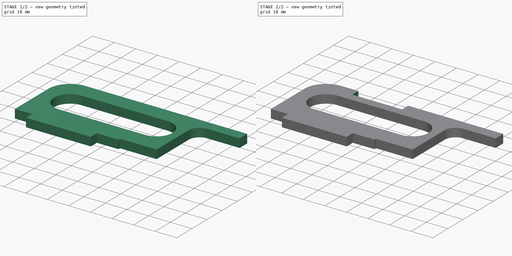
[diagram: build sequence overview — one tinted view per stage of 2, left to right]
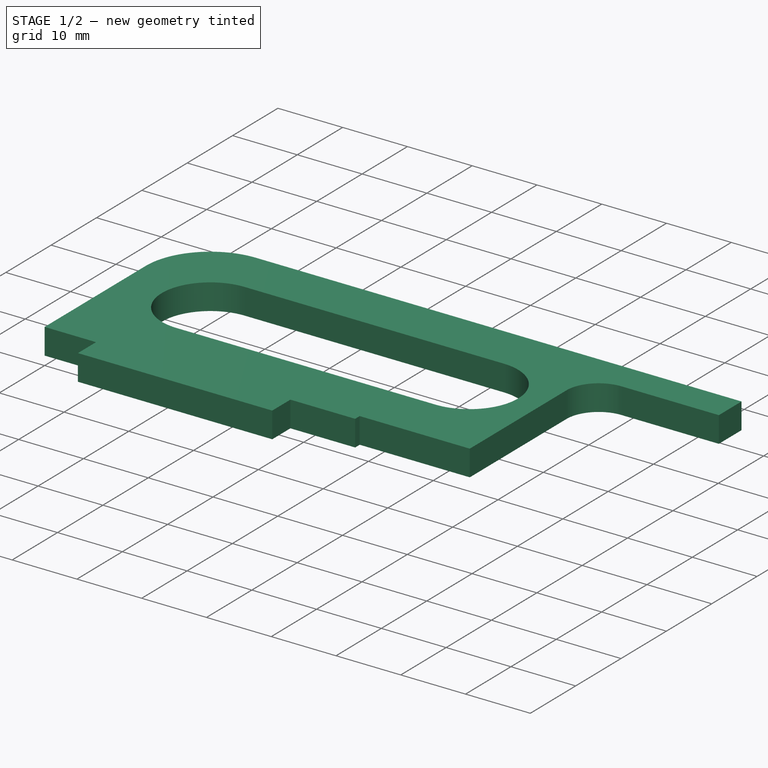
[diagram: stage 1 of 2 — iso view after this stage's code; geometry added in this stage tinted green]
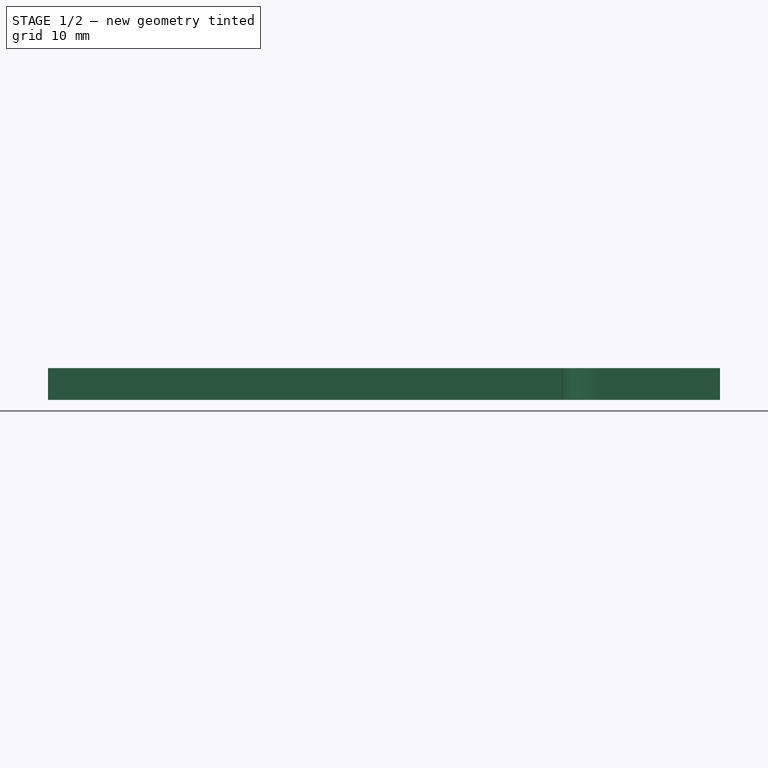
[diagram: stage 1 of 2 — front view after this stage's code; geometry added in this stage tinted green]
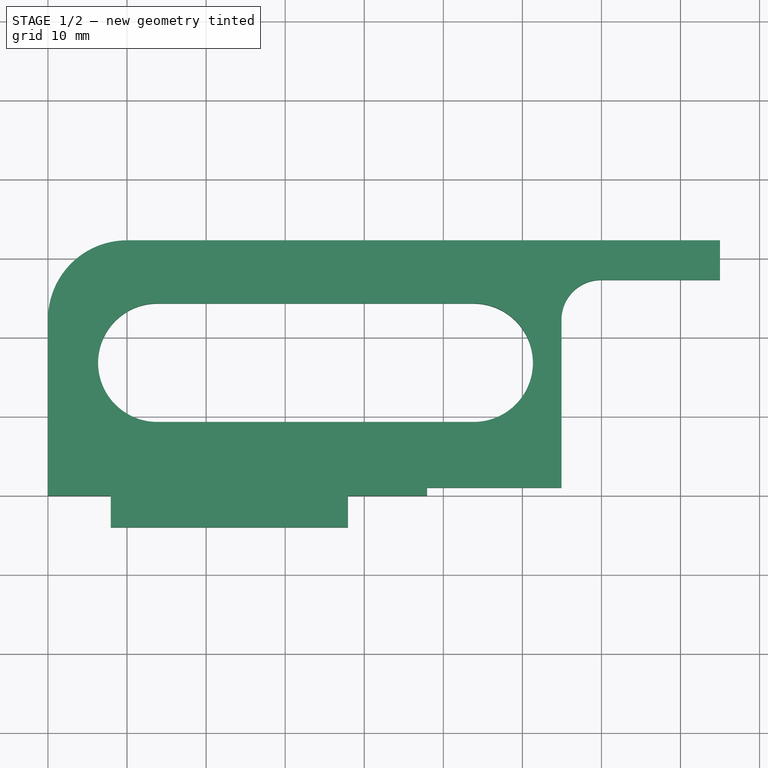
[diagram: stage 1 of 2 — top view after this stage's code; geometry added in this stage tinted green]
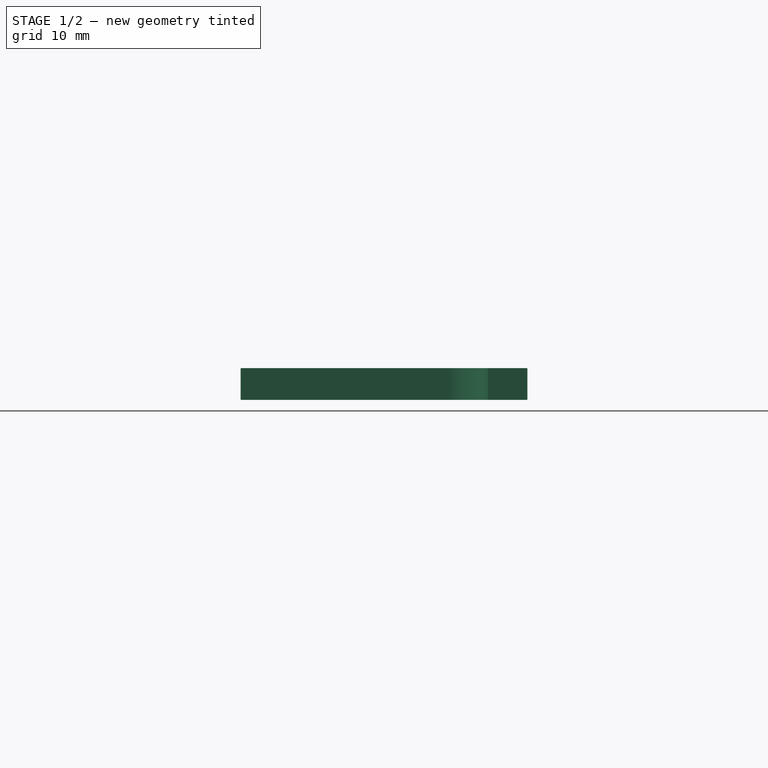
[diagram: stage 1 of 2 — right view after this stage's code; geometry added in this stage tinted green]
FCSTD DOCUMENT  (FreeCAD 0.21R33771 (Git))
Label: FRAME_STRUT_01
License: All rights reserved
LicenseURL: https://en.wikipedia.org/wiki/All_rights_reserved
objects: Sketcher::SketchObject×2, PartDesign::Pad×1, PartDesign::Pocket×1, PartDesign::Body×1
note: 7 computed .brp shape members not serialized (recipe doc carries the construction recipe); baked Part::Feature solids carry a one-line shape summary decoded from their .brp

FEATURE [Sketcher::SketchObject] Sketch002  label="STRUT_01"
  FullyConstrained = false
  MapMode = 5
  sketch-geometry (21):
    g0: LineSegment StartX=65 StartY=32.2816 StartZ=0 EndX=-10 EndY=32.2816 EndZ=0
    g1: LineSegment StartX=-20 StartY=22.2816 StartZ=0 EndX=-20 EndY=0 EndZ=0
    g2: LineSegment StartX=65 StartY=27.2816 StartZ=0 EndX=65 EndY=32.2816 EndZ=0
    g3: LineSegment StartX=49.9465 StartY=27.2816 StartZ=0 EndX=65 EndY=27.2816 EndZ=0
    g4: ArcOfCircle CenterX=-10 CenterY=22.2816 CenterZ=0 NormalX=0 NormalY=0 NormalZ=1 AngleXU=0 Radius=10 StartAngle=1.5708 EndAngle=3.14159
    g5: GeomPoint X=-20 Y=32.2816 Z=0
    g6: LineSegment StartX=27.9465 StartY=0 StartZ=0 EndX=27.9465 EndY=1 EndZ=0
    g7: LineSegment StartX=27.9465 StartY=1 StartZ=0 EndX=44.9465 EndY=1 EndZ=0
    g8: LineSegment StartX=44.9465 StartY=1 StartZ=0 EndX=44.9465 EndY=22.2816 EndZ=0
    g9: LineSegment StartX=44.9465 StartY=0 StartZ=0 EndX=44.9465 EndY=1 EndZ=0
    g10: LineSegment StartX=0 StartY=0 StartZ=0 EndX=0 EndY=5.71593 EndZ=0
    g11: LineSegment StartX=27.9465 StartY=0 StartZ=0 EndX=17.9465 EndY=0 EndZ=0
    g12: LineSegment StartX=17.9465 StartY=-4 StartZ=0 EndX=17.9465 EndY=0 EndZ=0
    g13: LineSegment StartX=17.9465 StartY=-4 StartZ=0 EndX=-12.0535 EndY=-4 EndZ=0
    g14: LineSegment StartX=-12.0535 StartY=-4 StartZ=0 EndX=-12.0535 EndY=0 EndZ=0
    g15: LineSegment StartX=-12.0535 StartY=0 StartZ=0 EndX=-20 EndY=0 EndZ=0
    g16: ArcOfCircle CenterX=-6.16461 CenterY=16.8073 CenterZ=0 NormalX=0 NormalY=0 NormalZ=1 AngleXU=0 Radius=7.5 StartAngle=1.5708 EndAngle=4.71239
    g17: ArcOfCircle CenterX=33.8354 CenterY=16.8073 CenterZ=0 NormalX=0 NormalY=0 NormalZ=1 AngleXU=0 Radius=7.5 StartAngle=4.71239 EndAngle=7.85398
    g18: LineSegment StartX=33.8354 StartY=24.3073 StartZ=0 EndX=-6.16461 EndY=24.3073 EndZ=0
    g19: LineSegment StartX=-6.16461 StartY=9.30731 StartZ=0 EndX=33.8354 EndY=9.30731 EndZ=0
    g20: ArcOfCircle CenterX=49.9465 CenterY=22.2816 CenterZ=0 NormalX=0 NormalY=0 NormalZ=1 AngleXU=0 Radius=5 StartAngle=1.5708 EndAngle=3.14159
  constraints (51):
    c: Horizontal(g0)
    c: Vertical(g1)
    c: Coincident(g2,g0)
    c: Vertical(g2)
    c: DistanceX(g5,g0) = 85
    c: DistanceX(g1,g-1) = 20
    c: DistanceY(g2,g2) = 5
    c: DistanceY(g12,g6) = 4
    c: PointOnObject(g5,g0)
    c: PointOnObject(g5,g1)
    c: Tangent(g0,g4) = -1.5708
    c: Tangent(g1,g4) = -1.5708
    c: Radius(g4) = 10
    c: Coincident(g7,g6)
    c: Horizontal(g7)
    c: Coincident(g8,g7)
    c: Vertical(g8)
    c: DistanceY(g6,g6) = 1
    c: PointOnObject(g6,g-1)
    c: PointOnObject(g9,g-1)
    c: Coincident(g9,g7)
    c: Vertical(g9)
    c: PointOnObject(g10,g-2)
    c: Coincident(g11,g6)
    c: PointOnObject(g11,g-1)
    c: Coincident(g12,g11)
    c: Vertical(g12)
    c: DistanceX(g7,g7) = 17
    c: Vertical(g6)
    c: Coincident(g13,g12)
    c: Horizontal(g13)
    c: Coincident(g14,g13)
    c: Vertical(g14)
    c: Coincident(g15,g14)
    c: Coincident(g15,g1)
    c: DistanceX(g13,g13) = 30
    c: DistanceX(g11,g11) = 10
    c: Coincident(g2,g3)
    c: Horizontal(g3)
    c: Tangent(g17,g18) = -1.5708
    c: Tangent(g18,g16) = -1.5708
    c: Equal(g16,g17)
    c: DistanceY(g17,g17) = 15
    c: DistanceX(g16,g17) = 40
    c: Coincident(g19,g16)
    c: Coincident(g19,g17)
    c: Horizontal(g19)
    c: Tangent(g19,g16)
    c: Tangent(g8,g20) = 1.5708
    c: Tangent(g3,g20) = 1.5708
    c: Radius(g20) = 5
FEATURE [PartDesign::Pad] Pad
  Direction = (0,0,1)
  Length = 4
  Length2 = 10
  Profile = -> Sketch002
  ReferenceAxis = -> Sketch002 [N_Axis]
  Type = 0
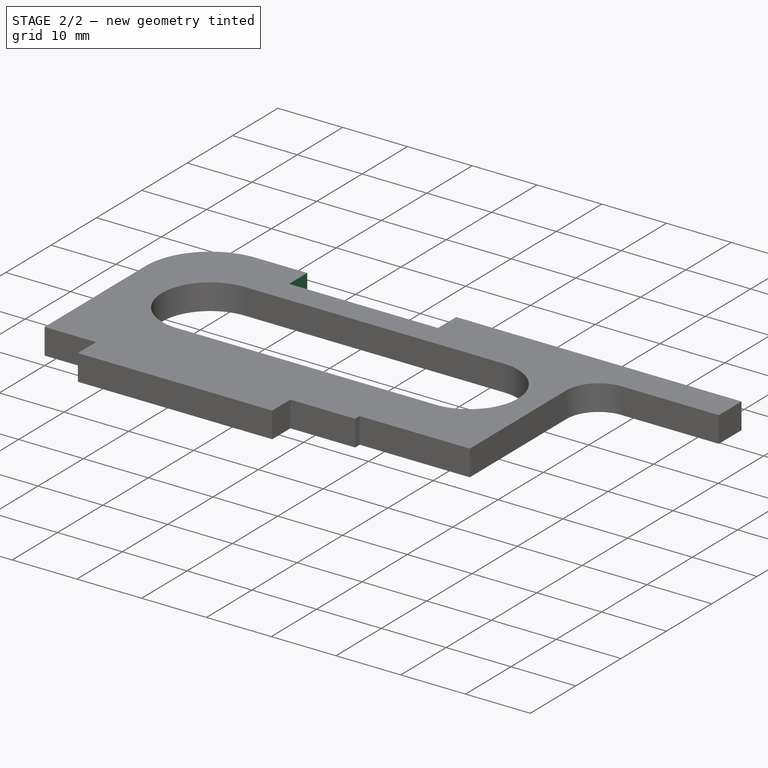
[diagram: stage 2 of 2 — iso view after this stage's code; geometry added in this stage tinted green]
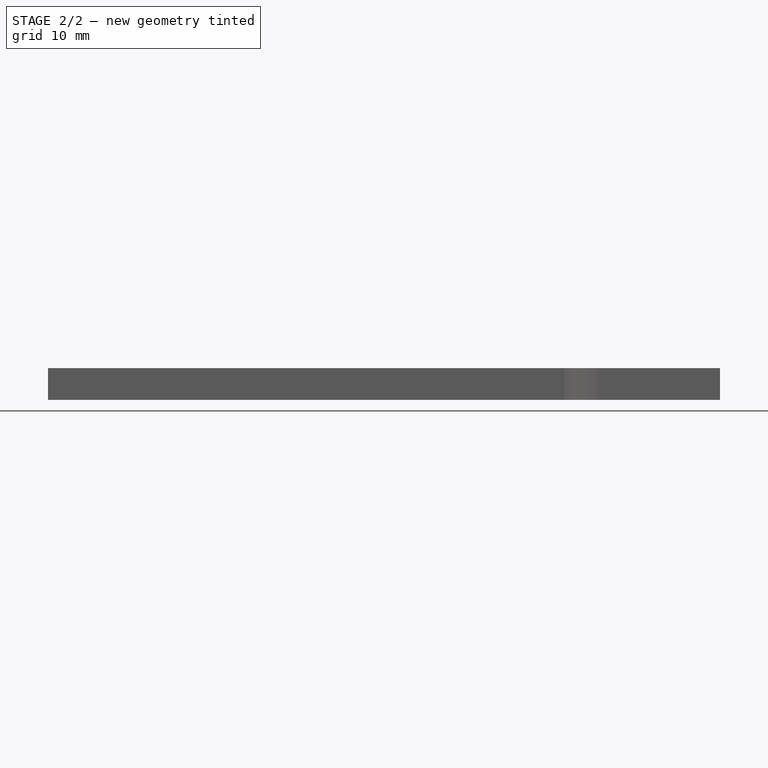
[diagram: stage 2 of 2 — front view after this stage's code; geometry added in this stage tinted green]
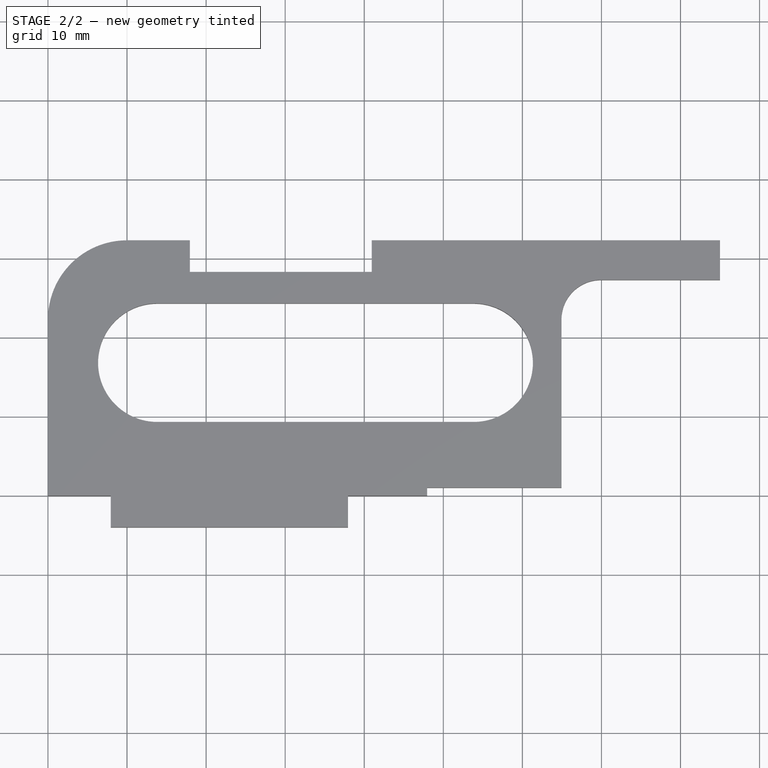
[diagram: stage 2 of 2 — top view after this stage's code; geometry added in this stage tinted green]
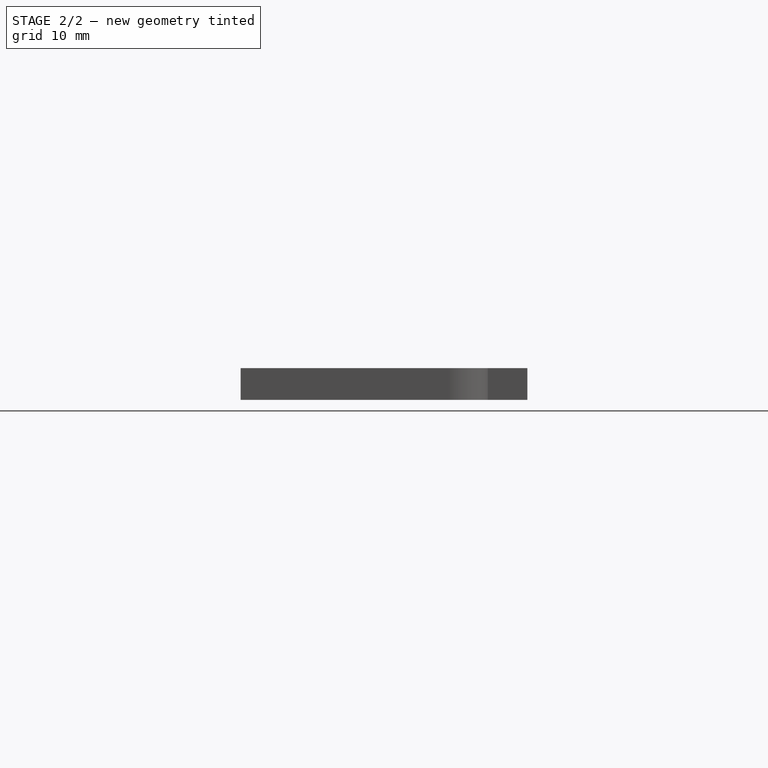
[diagram: stage 2 of 2 — right view after this stage's code; geometry added in this stage tinted green]
FEATURE [Sketcher::SketchObject] Sketch
  ExternalGeometry = -> [Pad]
  FullyConstrained = true
  MapMode = 5
  Placement = pos=(0,0,4) rot=(0,0,1;0rad)
  Support = -> [Pad]
  sketch-geometry (4):
    g0: LineSegment StartX=-2.05346 StartY=32.2816 StartZ=0 EndX=20.9465 EndY=32.2816 EndZ=0
    g1: LineSegment StartX=20.9465 StartY=32.2816 StartZ=0 EndX=20.9465 EndY=28.2816 EndZ=0
    g2: LineSegment StartX=20.9465 StartY=28.2816 StartZ=0 EndX=-2.05346 EndY=28.2816 EndZ=0
    g3: LineSegment StartX=-2.05346 StartY=28.2816 StartZ=0 EndX=-2.05346 EndY=32.2816 EndZ=0
  constraints (12):
    c: Coincident(g0,g1)
    c: Coincident(g1,g2)
    c: Coincident(g2,g3)
    c: Coincident(g3,g0)
    c: Horizontal(g0)
    c: Horizontal(g2)
    c: Vertical(g1)
    c: Vertical(g3)
    c: PointOnObject(g0,g-3)
    c: DistanceY(g1,g1) = 4
    c: DistanceX(g0,g0) = 23
    c: DistanceX(g-4,g0) = 10
FEATURE [PartDesign::Pocket] Pocket
  BaseFeature = -> Pad
  Direction = (0,0,-1)
  Length = 5
  Length2 = 5
  Profile = -> Sketch
  ReferenceAxis = -> Sketch [N_Axis]
  Type = 0
FEATURE [PartDesign::Body] Body
  Group = -> [Sketch002,Pad,Sketch,Pocket]
  Origin = -> Origin
  Tip = -> Pocket
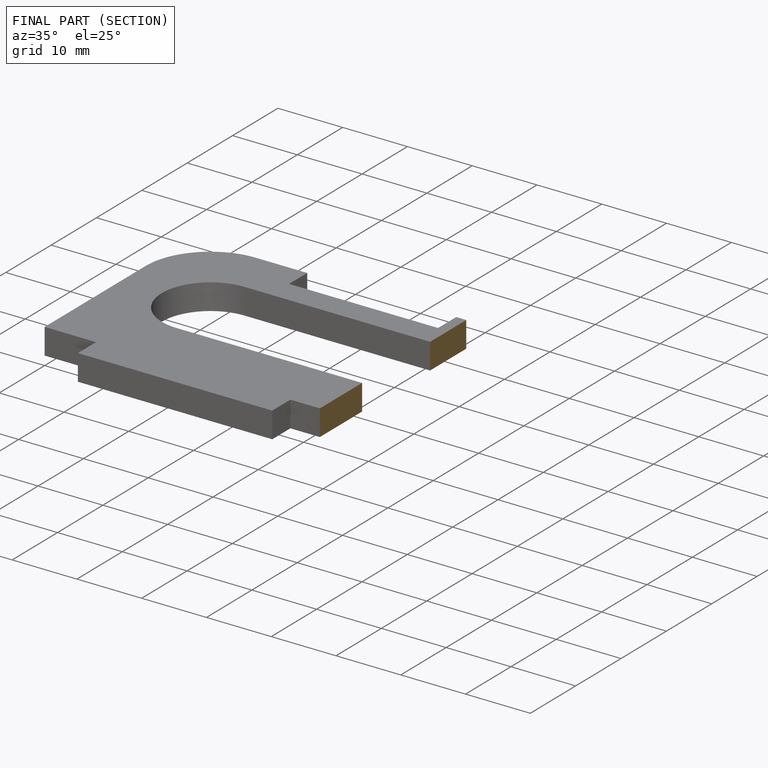
[diagram: finished part — half-section view (interior)]
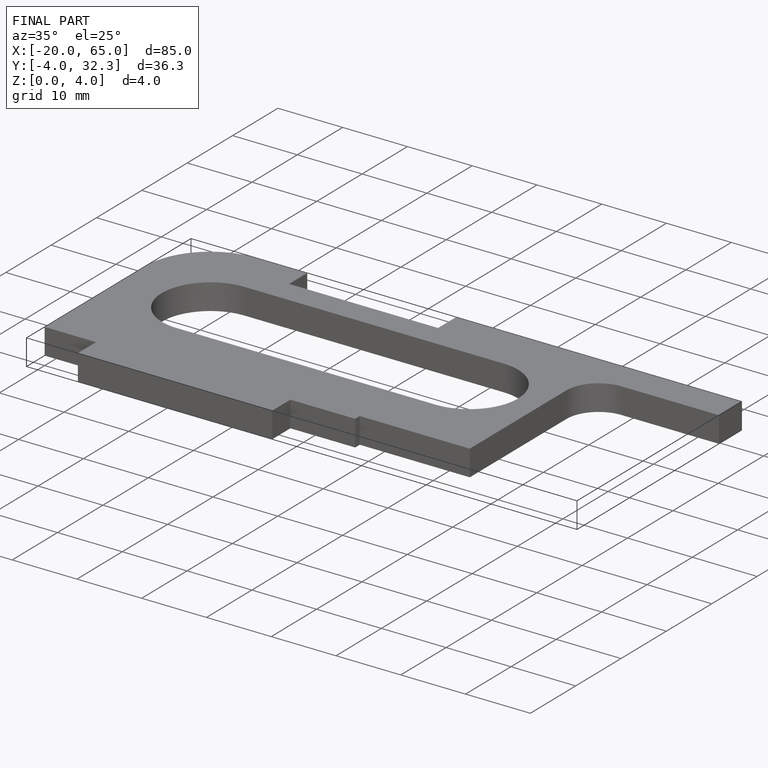
[diagram: finished part — iso view with bounding-box wireframe]
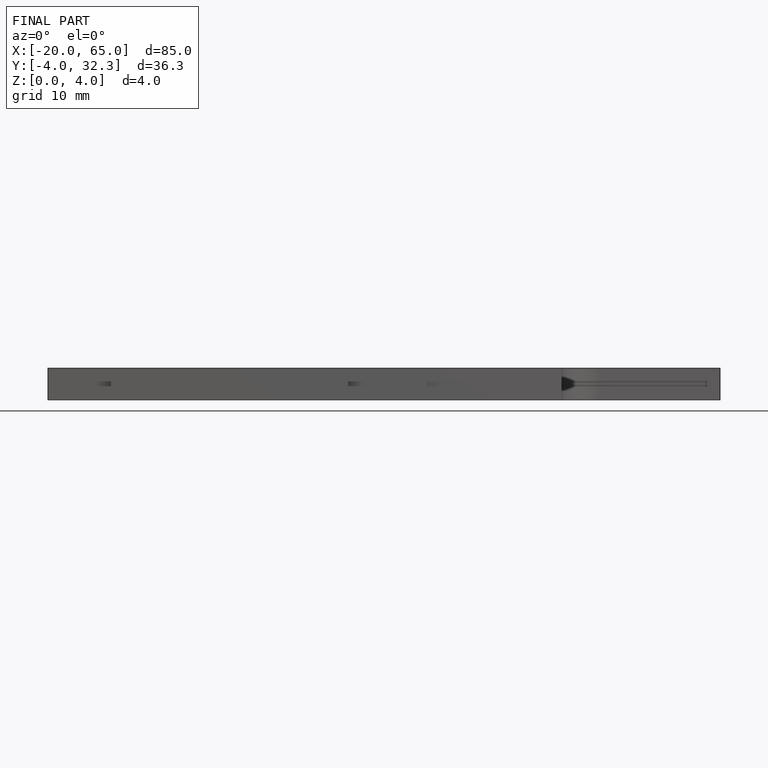
[diagram: finished part — front view with bounding-box wireframe]
